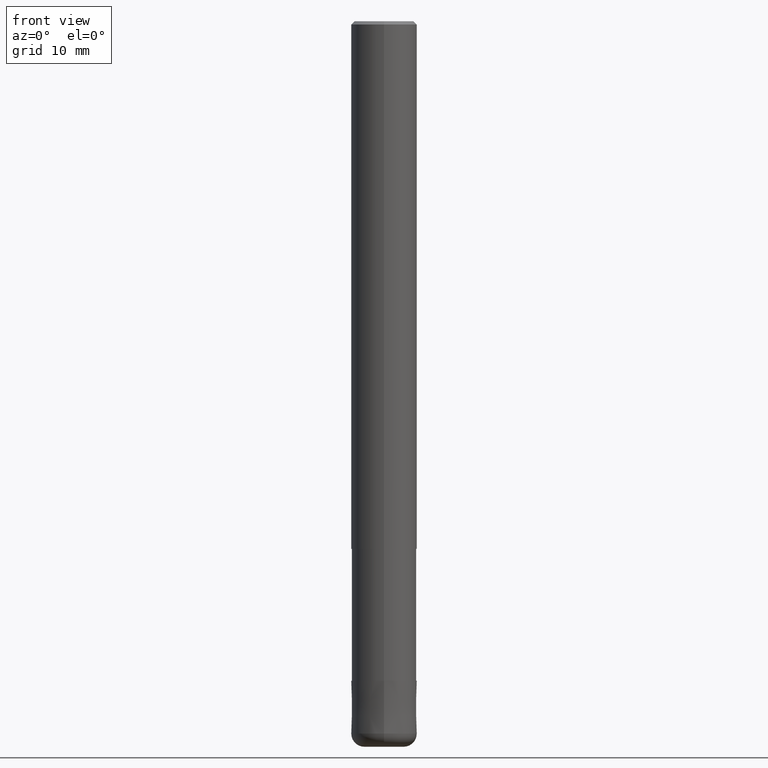
[diagram: clean part render]
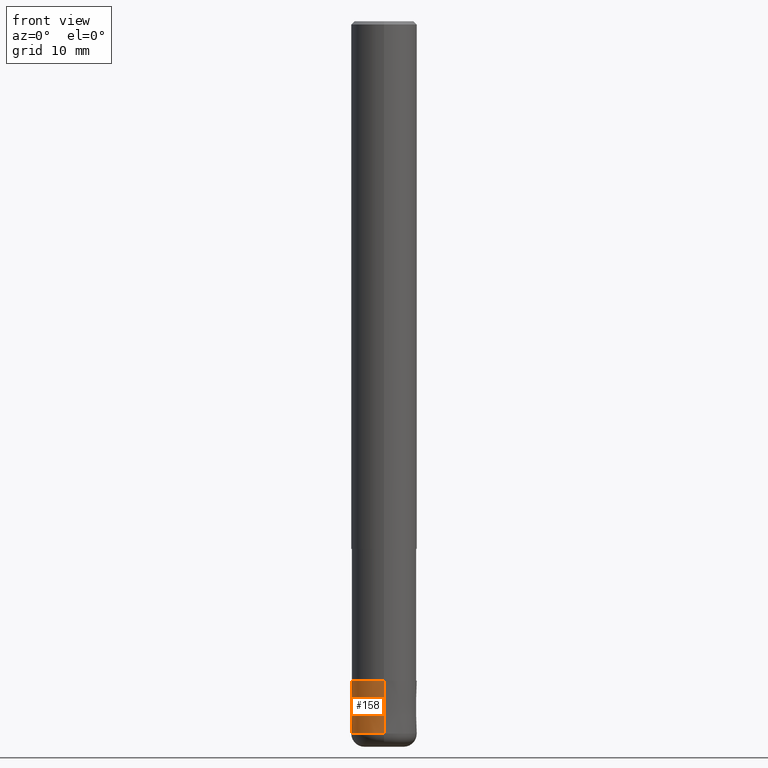
[diagram: same view with one face highlighted and labeled with its STEP entity id]
A machine part, front view. The second image highlights one B-rep face of the part: STEP entity #158.
In plain terms, the highlighted conical surface has half-angle 0.001 deg.
Its self-contained STEP definition (entity closure, byte-faithful):
#96=EDGE_CURVE('',#138,#182,#233,.T.);
#114=EDGE_CURVE('',#164,#138,#254,.T.);
#138=VERTEX_POINT('',#281);
#158=ADVANCED_FACE('',(#304),#305,.T.);
#164=VERTEX_POINT('',#312);
#182=VERTEX_POINT('',#332);
#194=VERTEX_POINT('',#347);
#200=EDGE_CURVE('',#164,#194,#353,.T.);
#204=EDGE_CURVE('',#182,#194,#357,.T.);
#233=CIRCLE('',#380,4.9999);
#254=LINE('',#403,#404);
#281=CARTESIAN_POINT('',(6.1229093084765E-016,-4.9999,-100.0));
#304=FACE_OUTER_BOUND('',#462,.T.);
#305=CONICAL_SURFACE('',#463,4.99995,1.24999999993198E-005);
#312=CARTESIAN_POINT('',(6.12303176911189E-016,-5.0,-108.0));
#332=CARTESIAN_POINT('',(0.0,4.9999,-100.0));
#347=CARTESIAN_POINT('',(0.0,5.0,-108.0));
#353=CIRCLE('',#523,5.0);
#357=LINE('',#530,#531);
#380=AXIS2_PLACEMENT_3D('',#543,#544,#545);
#403=CARTESIAN_POINT('',(6.1229705387942E-016,-4.99995,-104.0));
#404=VECTOR('',#571,1.0);
#462=EDGE_LOOP('',(#638,#639,#640,#641));
#463=AXIS2_PLACEMENT_3D('',#642,#643,#644);
#523=AXIS2_PLACEMENT_3D('',#707,#708,#709);
#530=CARTESIAN_POINT('',(-6.1229705387942E-016,4.99995,-104.0));
#531=VECTOR('',#711,1.0);
#543=CARTESIAN_POINT('',(0.0,0.0,-100.0));
#544=DIRECTION('',(0.0,0.0,-1.0));
#545=DIRECTION('',(0.0,1.0,0.0));
#571=DIRECTION('',(-1.53075794215481E-021,1.24999999989943E-005,0.999999999921875));
#638=ORIENTED_EDGE('',*,*,#204,.T.);
#639=ORIENTED_EDGE('',*,*,#200,.F.);
#640=ORIENTED_EDGE('',*,*,#114,.T.);
#641=ORIENTED_EDGE('',*,*,#96,.T.);
#642=CARTESIAN_POINT('',(0.0,0.0,-104.0));
#643=DIRECTION('',(0.0,-0.0,-1.0));
#644=DIRECTION('',(0.0,1.0,0.0));
#707=CARTESIAN_POINT('',(0.0,0.0,-108.0));
#708=DIRECTION('',(0.0,0.0,-1.0));
#709=DIRECTION('',(0.0,1.0,0.0));
#711=DIRECTION('',(-1.53075794215481E-021,1.24999999989943E-005,-0.999999999921875));